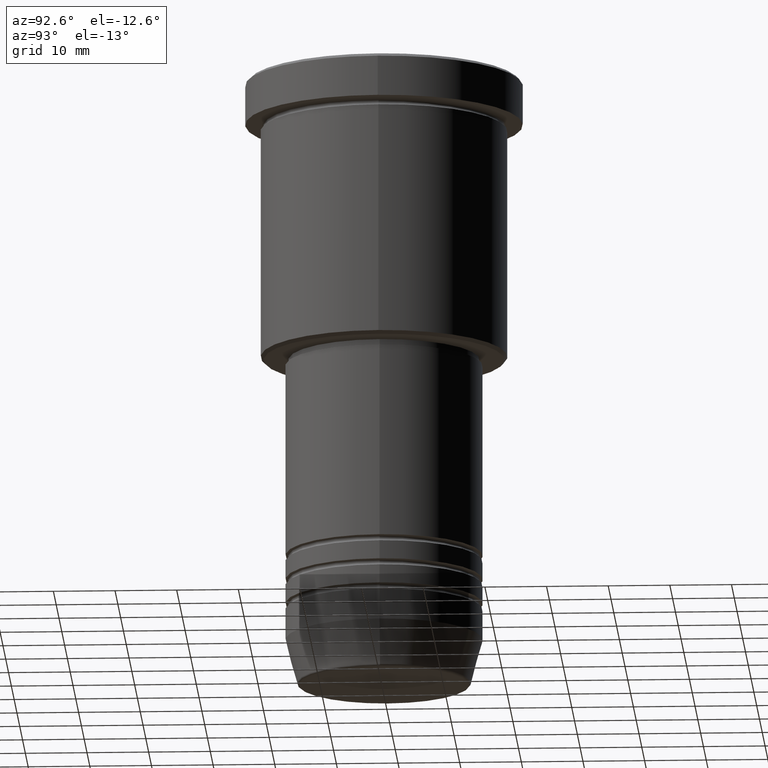
[diagram: clean part render]
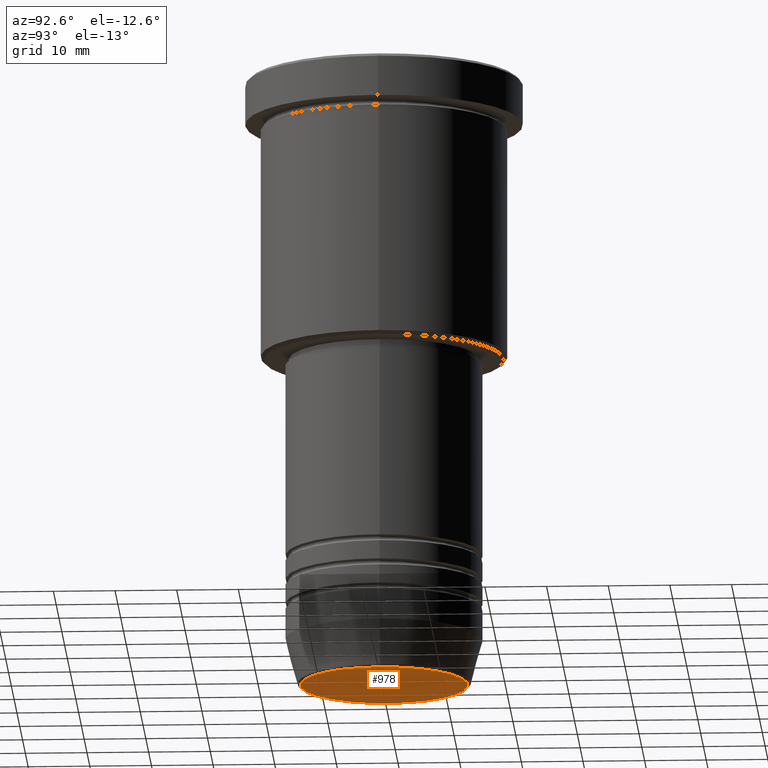
[diagram: same view with one face highlighted and labeled with its STEP entity id]
A machine part, auxiliary view. The second image highlights one B-rep face of the part: STEP entity #978.
In plain terms, the highlighted planar face has unit normal (0, -0, 1).
Its self-contained STEP definition (entity closure, byte-faithful):
#119 = EDGE_LOOP ( 'NONE', ( #139, #890 ) ) ;
#127 = CARTESIAN_POINT ( 'NONE',  ( 0.000000000000000000, 0.000000000000000000, -100.0000000000000000 ) ) ;
#139 = ORIENTED_EDGE ( 'NONE', *, *, #769, .T. ) ;
#142 = DIRECTION ( 'NONE',  ( 0.000000000000000000, 0.000000000000000000, -1.000000000000000000 ) ) ;
#157 = AXIS2_PLACEMENT_3D ( 'NONE', #223, #142, #860 ) ;
#175 = CIRCLE ( 'NONE', #157, 13.60671756277709221 ) ;
#214 = AXIS2_PLACEMENT_3D ( 'NONE', #127, #505, #221 ) ;
#221 = DIRECTION ( 'NONE',  ( 1.000000000000000000, 0.000000000000000000, 0.000000000000000000 ) ) ;
#223 = CARTESIAN_POINT ( 'NONE',  ( 0.000000000000000000, 0.000000000000000000, -100.0000000000000000 ) ) ;
#264 = CARTESIAN_POINT ( 'NONE',  ( 0.000000000000000000, 0.000000000000000000, -100.0000000000000000 ) ) ;
#287 = CARTESIAN_POINT ( 'NONE',  ( 13.60671756277709221, 0.000000000000000000, -100.0000000000000000 ) ) ;
#375 = CARTESIAN_POINT ( 'NONE',  ( -13.60671756277709221, 1.695915260300170666E-15, -100.0000000000000000 ) ) ;
#431 = PLANE ( 'NONE',  #518 ) ;
#505 = DIRECTION ( 'NONE',  ( 0.000000000000000000, 0.000000000000000000, -1.000000000000000000 ) ) ;
#510 = VERTEX_POINT ( 'NONE', #375 ) ;
#518 = AXIS2_PLACEMENT_3D ( 'NONE', #264, #806, #639 ) ;
#639 = DIRECTION ( 'NONE',  ( 1.000000000000000000, 0.000000000000000000, 0.000000000000000000 ) ) ;
#743 = CIRCLE ( 'NONE', #214, 13.60671756277709221 ) ;
#757 = EDGE_CURVE ( 'NONE', #510, #1089, #743, .T. ) ;
#769 = EDGE_CURVE ( 'NONE', #1089, #510, #175, .T. ) ;
#806 = DIRECTION ( 'NONE',  ( 0.000000000000000000, -0.000000000000000000, 1.000000000000000000 ) ) ;
#860 = DIRECTION ( 'NONE',  ( 1.000000000000000000, 0.000000000000000000, 0.000000000000000000 ) ) ;
#875 = FACE_OUTER_BOUND ( 'NONE', #119, .T. ) ;
#890 = ORIENTED_EDGE ( 'NONE', *, *, #757, .T. ) ;
#978 = ADVANCED_FACE ( 'NONE', ( #875 ), #431, .F. ) ;
#1089 = VERTEX_POINT ( 'NONE', #287 ) ;